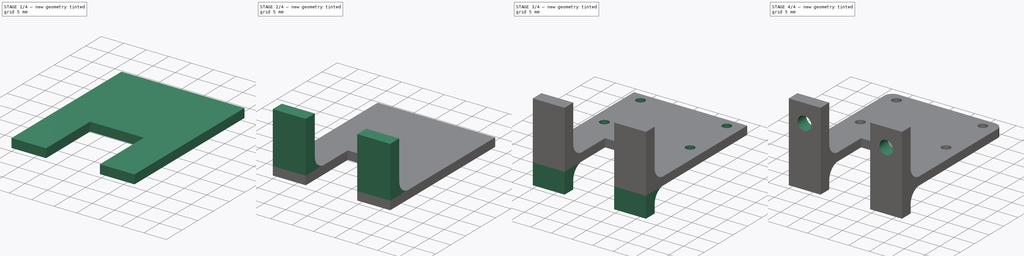
[diagram: build sequence overview — one tinted view per stage of 4, left to right]
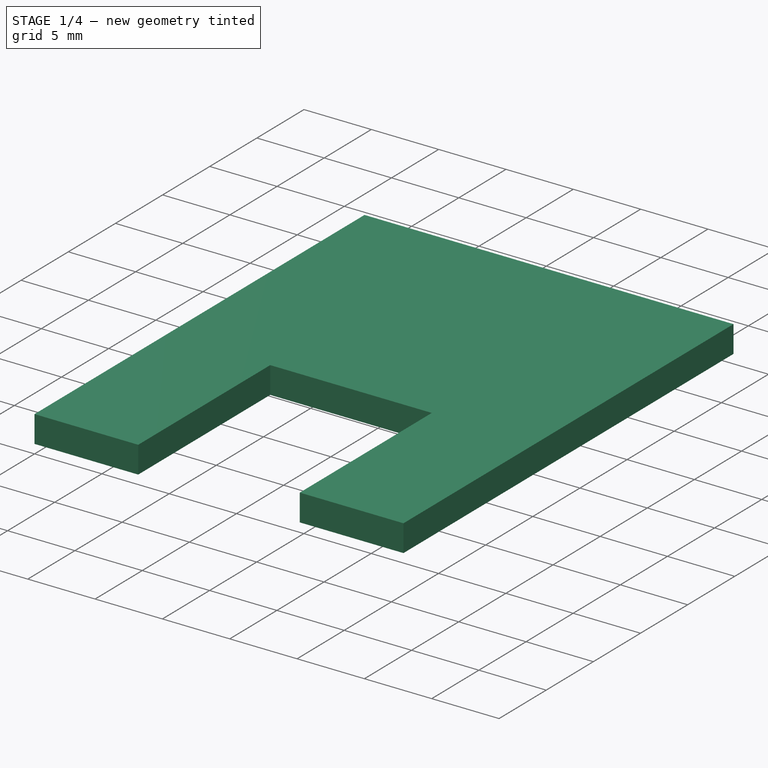
[diagram: stage 1 of 4 — iso view after this stage's code; geometry added in this stage tinted green]
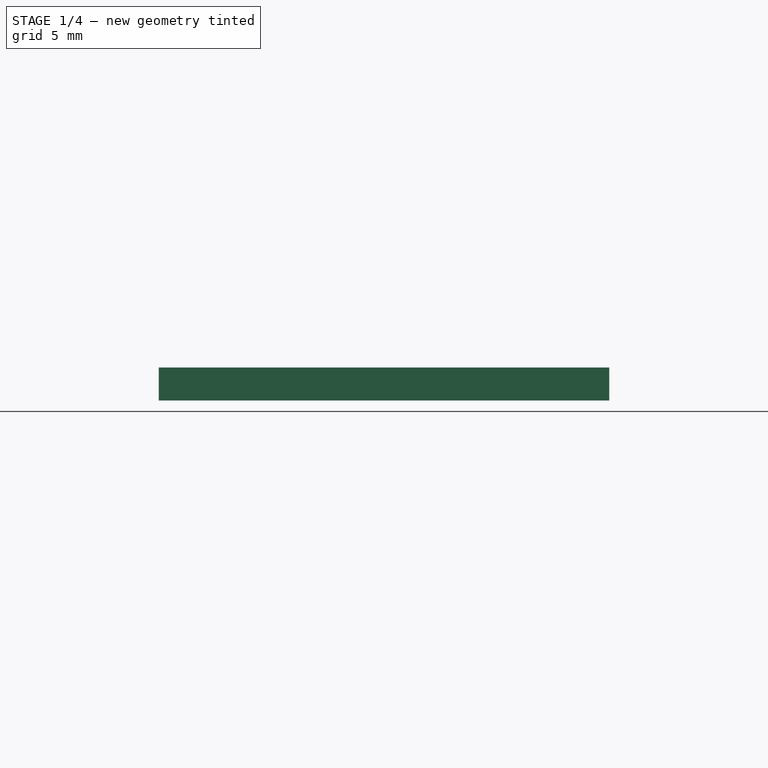
[diagram: stage 1 of 4 — front view after this stage's code; geometry added in this stage tinted green]
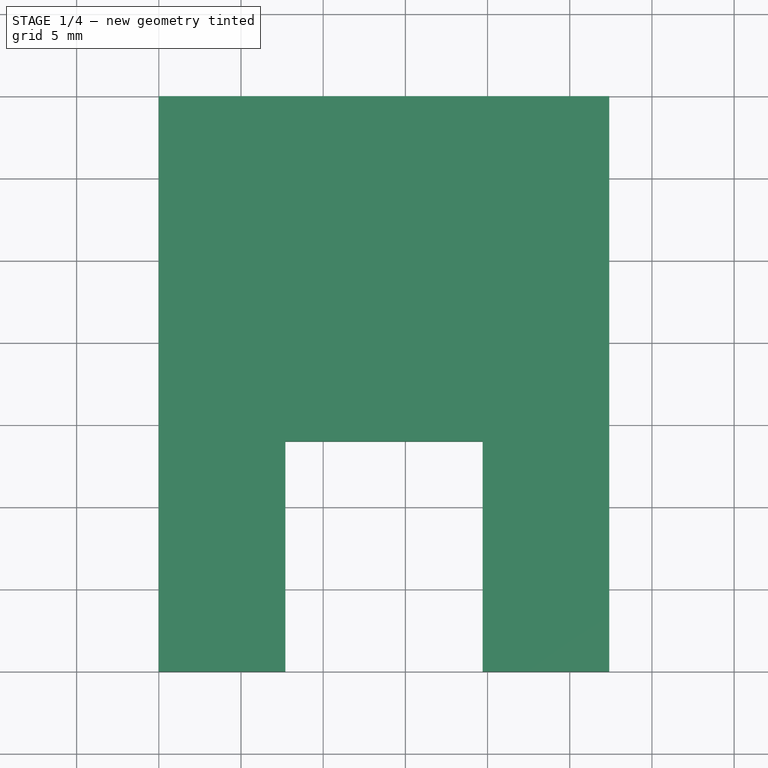
[diagram: stage 1 of 4 — top view after this stage's code; geometry added in this stage tinted green]
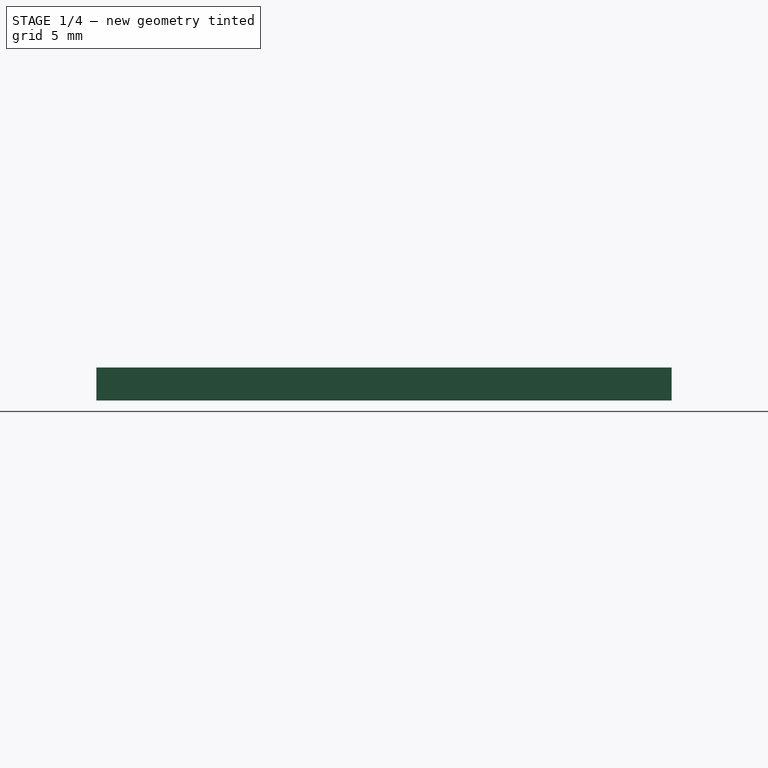
[diagram: stage 1 of 4 — right view after this stage's code; geometry added in this stage tinted green]
FCSTD DOCUMENT  (FreeCAD 0.20R29177 (Git))
Label: RPiCAM-FRAME
License: All rights reserved
LicenseURL: http://en.wikipedia.org/wiki/All_rights_reserved
objects: Sketcher::SketchObject×6, PartDesign::Pad×3, PartDesign::Pocket×3, PartDesign::Fillet×3, PartDesign::Body×1
note: 25 computed .brp shape members not serialized (recipe doc carries the construction recipe); baked Part::Feature solids carry a one-line shape summary decoded from their .brp

FEATURE [Sketcher::SketchObject] Sketch
  FullyConstrained = true
  MapMode = 5
  Support = -> [XY_Plane]
  sketch-geometry (4):
    g0: LineSegment StartX=0 StartY=0 StartZ=0 EndX=27.4 EndY=0 EndZ=0
    g1: LineSegment StartX=27.4 StartY=0 StartZ=0 EndX=27.4 EndY=35 EndZ=0
    g2: LineSegment StartX=27.4 StartY=35 StartZ=0 EndX=0 EndY=35 EndZ=0
    g3: LineSegment StartX=0 StartY=35 StartZ=0 EndX=0 EndY=0 EndZ=0
  constraints (11):
    c: Coincident(g0,g1)
    c: Coincident(g1,g2)
    c: Coincident(g2,g3)
    c: Coincident(g3,g0)
    c: Horizontal(g0)
    c: Horizontal(g2)
    c: Vertical(g1)
    c: Vertical(g3)
    c: Coincident(g0,g-1)
    c: DistanceX(g2,g2) = 27.4
    c: DistanceY(g1,g1) = 35
FEATURE [PartDesign::Pad] Pad
  Direction = (0,0,1)
  Length = 2
  Length2 = 10
  Profile = -> Sketch
  ReferenceAxis = -> Sketch [N_Axis]
  Type = 0
FEATURE [Sketcher::SketchObject] Sketch001
  FullyConstrained = true
  MapMode = 5
  Placement = pos=(0,0,2) rot=(0,0,1;0rad)
  Support = -> [Pad]
  sketch-geometry (4):
    g0: LineSegment StartX=7.7 StartY=0 StartZ=0 EndX=19.7 EndY=0 EndZ=0
    g1: LineSegment StartX=19.7 StartY=0 StartZ=0 EndX=19.7 EndY=14 EndZ=0
    g2: LineSegment StartX=19.7 StartY=14 StartZ=0 EndX=7.7 EndY=14 EndZ=0
    g3: LineSegment StartX=7.7 StartY=14 StartZ=0 EndX=7.7 EndY=0 EndZ=0
  constraints (12):
    c: Coincident(g0,g1)
    c: Coincident(g1,g2)
    c: Coincident(g2,g3)
    c: Coincident(g3,g0)
    c: Horizontal(g0)
    c: Horizontal(g2)
    c: Vertical(g1)
    c: Vertical(g3)
    c: PointOnObject(g0,g-1)
    c: DistanceX(g2,g2) = 12
    c: DistanceY(g3,g3) = 14
    c: DistanceX(g-1,g0) = 7.7
FEATURE [PartDesign::Pocket] Pocket
  BaseFeature = -> Pad
  Direction = (0,0,-1)
  Length = 2
  Length2 = 5
  Profile = -> Sketch001
  ReferenceAxis = -> Sketch001 [N_Axis]
  Type = 0
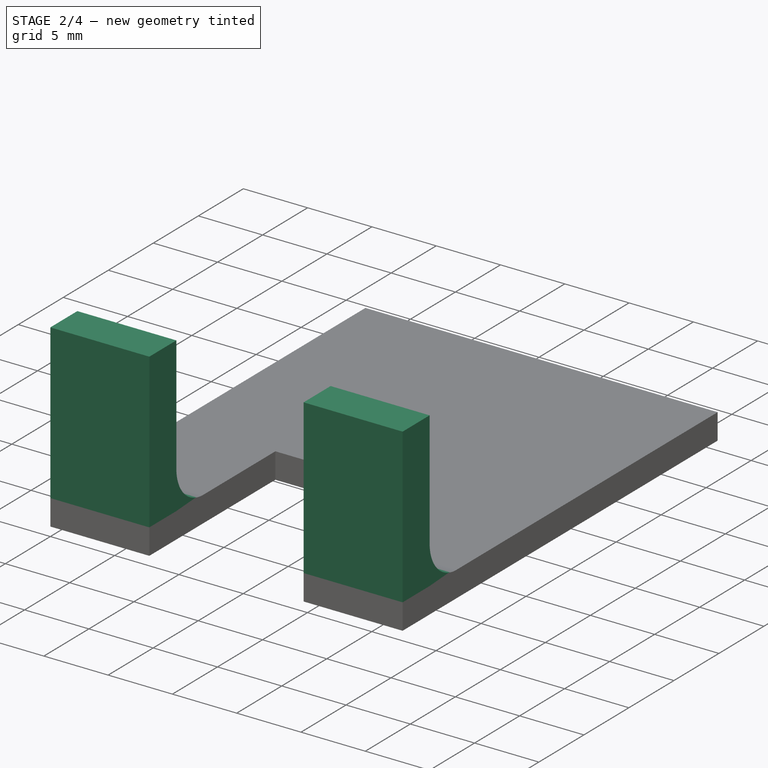
[diagram: stage 2 of 4 — iso view after this stage's code; geometry added in this stage tinted green]
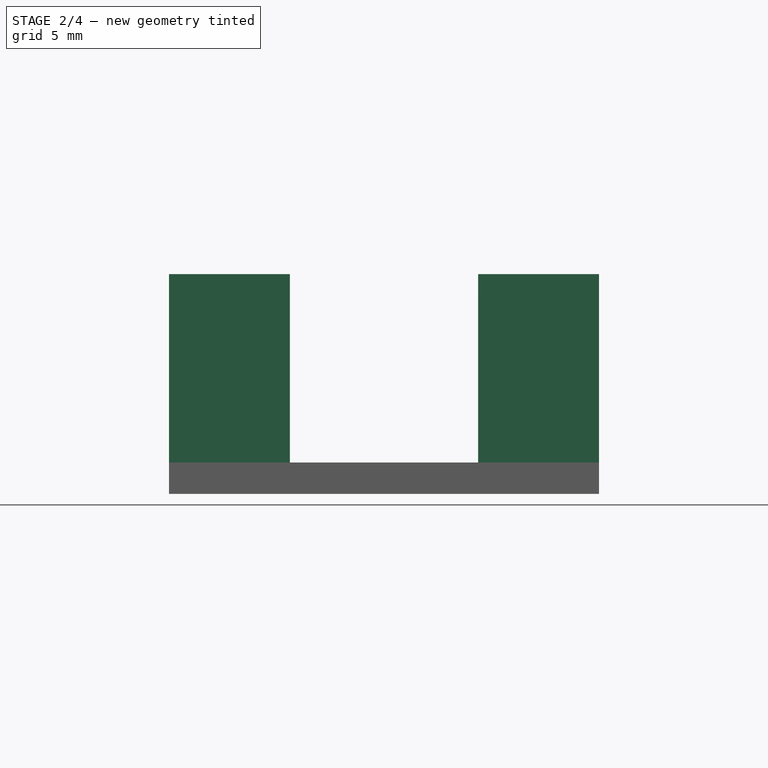
[diagram: stage 2 of 4 — front view after this stage's code; geometry added in this stage tinted green]
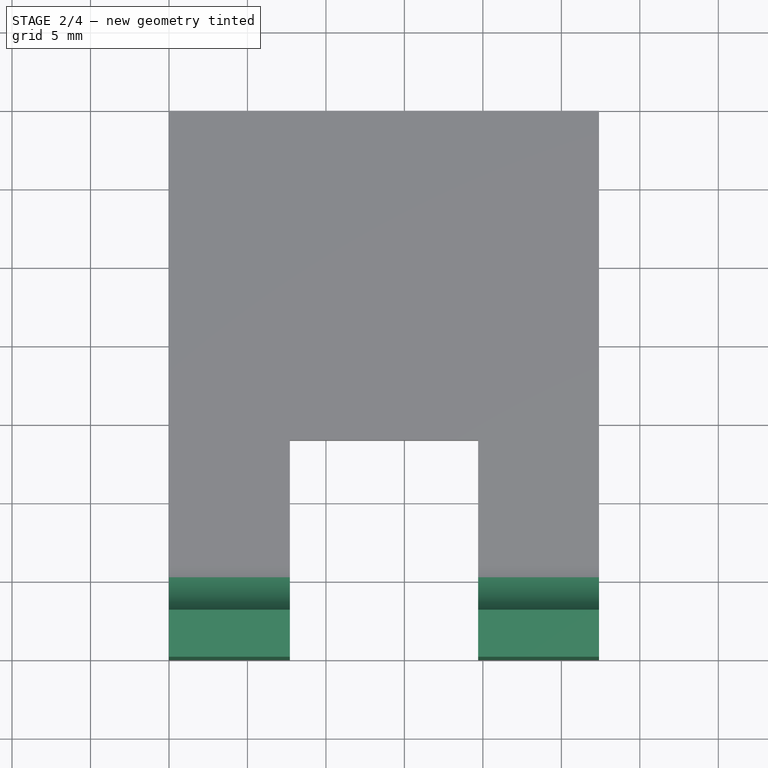
[diagram: stage 2 of 4 — top view after this stage's code; geometry added in this stage tinted green]
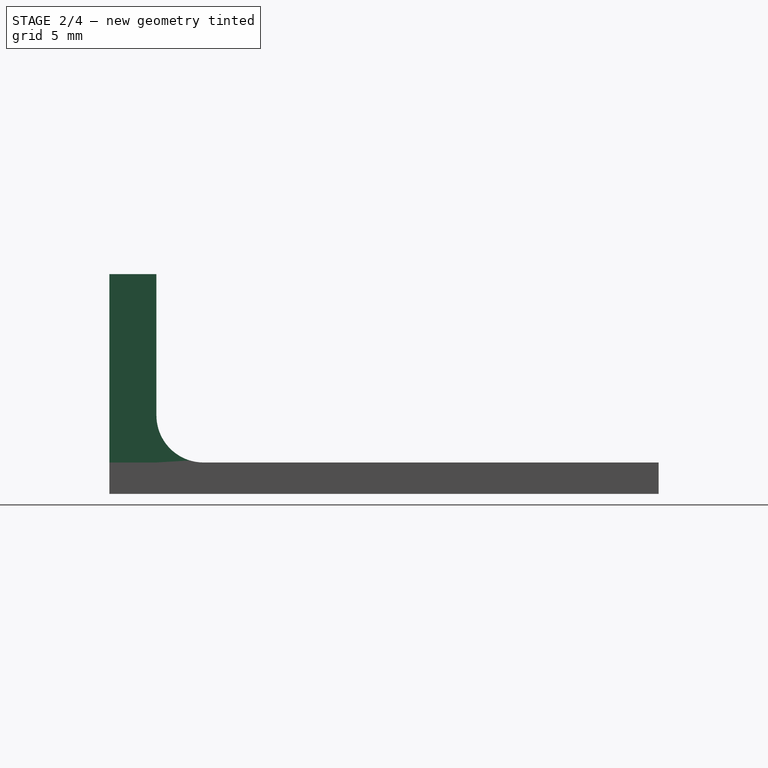
[diagram: stage 2 of 4 — right view after this stage's code; geometry added in this stage tinted green]
FEATURE [Sketcher::SketchObject] Sketch002
  FullyConstrained = true
  MapMode = 5
  Placement = pos=(0,0,2) rot=(0,0,1;0rad)
  Support = -> [Pocket]
  sketch-geometry (8):
    g0: LineSegment StartX=0 StartY=3 StartZ=0 EndX=7.7 EndY=3 EndZ=0
    g1: LineSegment StartX=7.7 StartY=3 StartZ=0 EndX=7.7 EndY=0 EndZ=0
    g2: LineSegment StartX=7.7 StartY=0 StartZ=0 EndX=0 EndY=0 EndZ=0
    g3: LineSegment StartX=0 StartY=0 StartZ=0 EndX=0 EndY=3 EndZ=0
    g4: LineSegment StartX=19.7 StartY=3 StartZ=0 EndX=27.4 EndY=3 EndZ=0
    g5: LineSegment StartX=27.4 StartY=3 StartZ=0 EndX=27.4 EndY=0 EndZ=0
    g6: LineSegment StartX=27.4 StartY=0 StartZ=0 EndX=19.7 EndY=0 EndZ=0
    g7: LineSegment StartX=19.7 StartY=0 StartZ=0 EndX=19.7 EndY=3 EndZ=0
  constraints (24):
    c: Coincident(g0,g1)
    c: Coincident(g1,g2)
    c: Coincident(g2,g3)
    c: Coincident(g3,g0)
    c: Horizontal(g0)
    c: Horizontal(g2)
    c: Vertical(g1)
    c: Vertical(g3)
    c: PointOnObject(g0,g-2)
    c: PointOnObject(g1,g-1)
    c: DistanceX(g0,g0) = 7.7
    c: DistanceY(g1,g1) = 3
    c: Coincident(g4,g5)
    c: Coincident(g5,g6)
    c: Coincident(g6,g7)
    c: Coincident(g7,g4)
    c: Horizontal(g4)
    c: Horizontal(g6)
    c: Vertical(g5)
    c: Vertical(g7)
    c: PointOnObject(g5,g-1)
    c: DistanceX(g4,g4) = 7.7
    c: DistanceY(g5,g5) = 3
    c: DistanceX(g1,g6) = 12
FEATURE [PartDesign::Pad] Pad001
  BaseFeature = -> Pocket
  Direction = (0,0,1)
  Length = 12
  Length2 = 10
  Profile = -> Sketch002
  ReferenceAxis = -> Sketch002 [N_Axis]
  Type = 0
FEATURE [PartDesign::Fillet] Fillet
  Base = -> Pad001 [Edge33,Edge32]
  BaseFeature = -> Pad001
  Radius = 3
  SupportTransform = false
  UseAllEdges = false
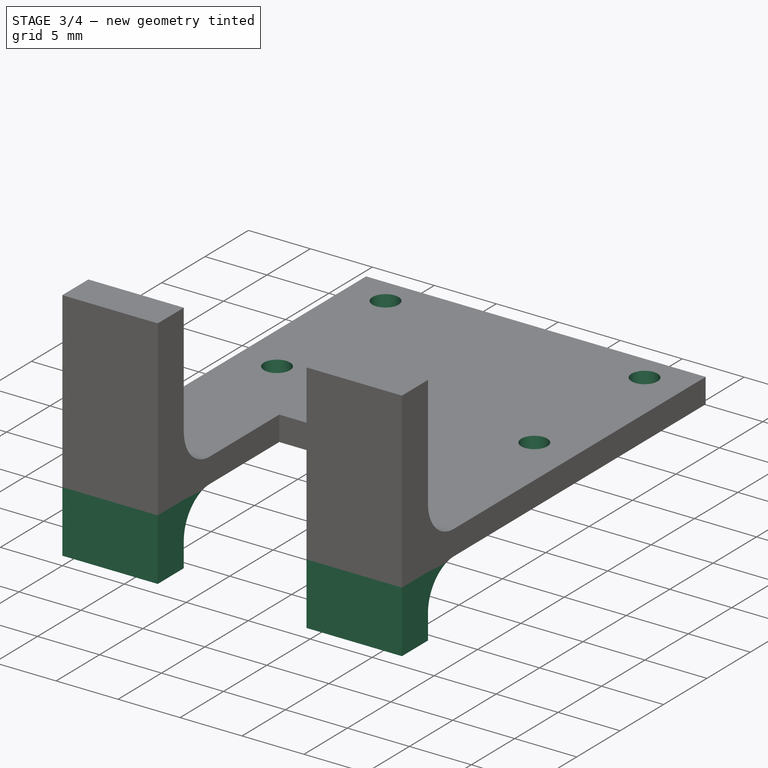
[diagram: stage 3 of 4 — iso view after this stage's code; geometry added in this stage tinted green]
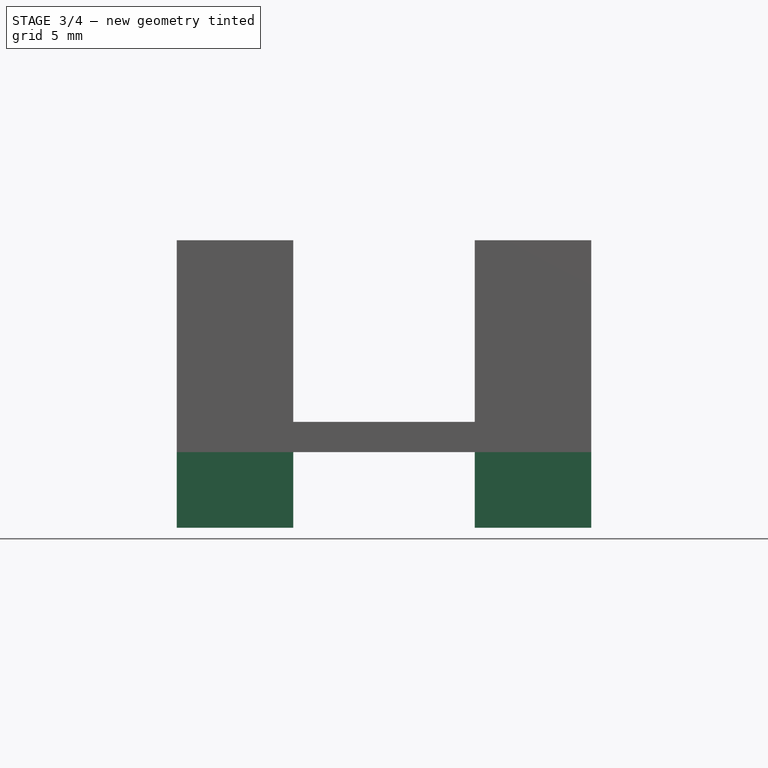
[diagram: stage 3 of 4 — front view after this stage's code; geometry added in this stage tinted green]
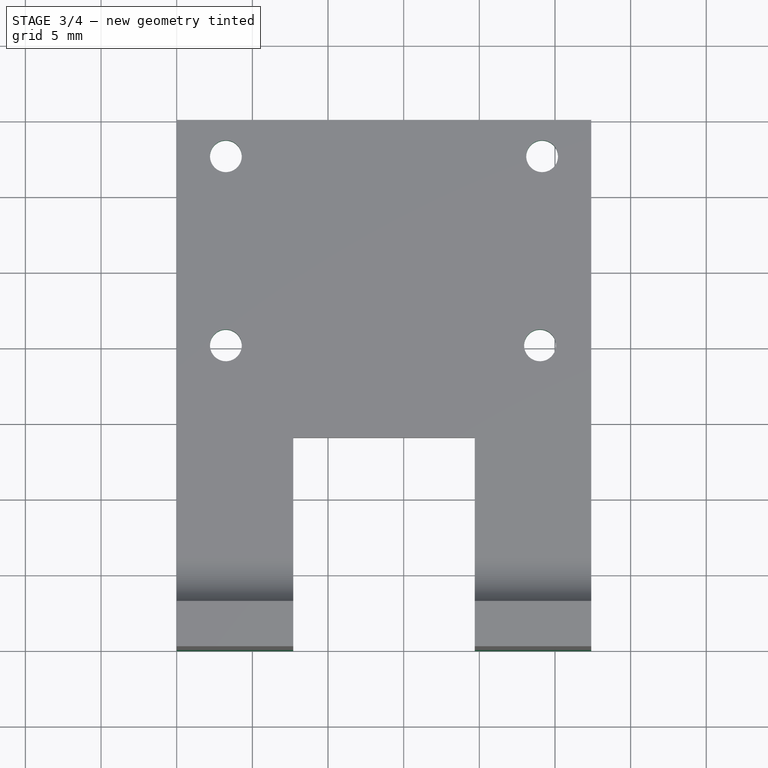
[diagram: stage 3 of 4 — top view after this stage's code; geometry added in this stage tinted green]
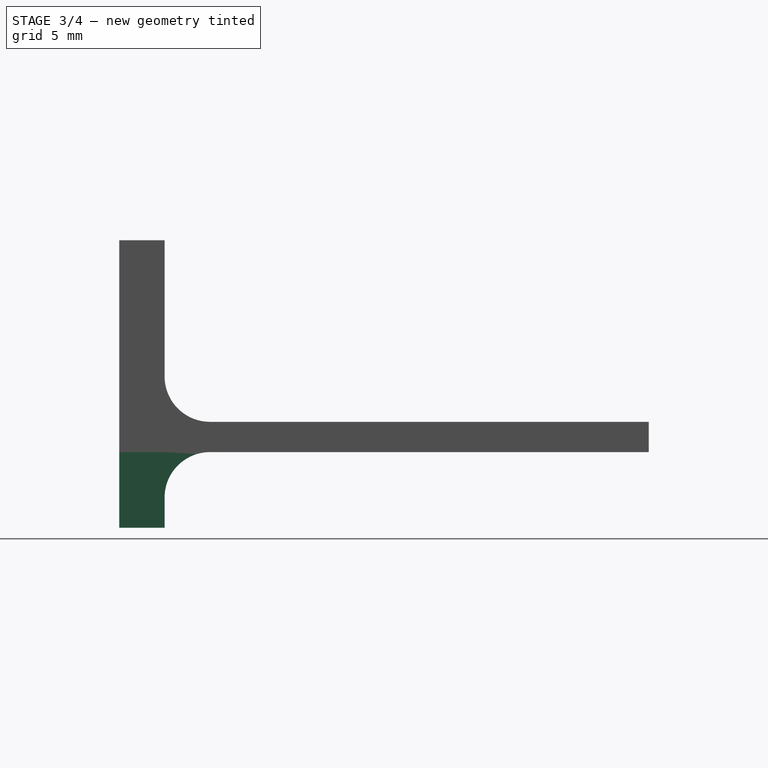
[diagram: stage 3 of 4 — right view after this stage's code; geometry added in this stage tinted green]
FEATURE [Sketcher::SketchObject] Sketch003
  FullyConstrained = true
  MapMode = 5
  Placement = pos=(0,0,0) rot=(1,0,0;3.14159rad)
  Support = -> [Fillet]
  sketch-geometry (8):
    g0: LineSegment StartX=0 StartY=0 StartZ=0 EndX=7.7 EndY=0 EndZ=0
    g1: LineSegment StartX=7.7 StartY=0 StartZ=0 EndX=7.7 EndY=-3 EndZ=0
    g2: LineSegment StartX=7.7 StartY=-3 StartZ=0 EndX=0 EndY=-3 EndZ=0
    g3: LineSegment StartX=0 StartY=-3 StartZ=0 EndX=0 EndY=0 EndZ=0
    g4: LineSegment StartX=19.7 StartY=0 StartZ=0 EndX=27.4 EndY=0 EndZ=0
    g5: LineSegment StartX=27.4 StartY=0 StartZ=0 EndX=27.4 EndY=-3 EndZ=0
    g6: LineSegment StartX=27.4 StartY=-3 StartZ=0 EndX=19.7 EndY=-3 EndZ=0
    g7: LineSegment StartX=19.7 StartY=-3 StartZ=0 EndX=19.7 EndY=0 EndZ=0
  constraints (23):
    c: Coincident(g0,g1)
    c: Coincident(g1,g2)
    c: Coincident(g2,g3)
    c: Coincident(g3,g0)
    c: Horizontal(g0)
    c: Horizontal(g2)
    c: Vertical(g1)
    c: Vertical(g3)
    c: Coincident(g0,g-1)
    c: DistanceY(g1,g1) = 3
    c: DistanceX(g0,g0) = 7.7
    c: Coincident(g4,g5)
    c: Coincident(g5,g6)
    c: Coincident(g6,g7)
    c: Coincident(g7,g4)
    c: Horizontal(g4)
    c: Horizontal(g6)
    c: Vertical(g5)
    c: Vertical(g7)
    c: PointOnObject(g4,g-1)
    c: DistanceY(g7,g7) = 3
    c: DistanceX(g6,g6) = 7.7
    c: DistanceX(g0,g4) = 12
FEATURE [PartDesign::Pad] Pad002
  BaseFeature = -> Fillet
  Direction = (0,0,-1)
  Length = 5
  Length2 = 10
  Profile = -> Sketch003
  ReferenceAxis = -> Sketch003 [N_Axis]
  Type = 0
FEATURE [PartDesign::Fillet] Fillet001
  Base = -> Pad002 [Edge25,Edge23]
  BaseFeature = -> Pad002
  Radius = 3
  SupportTransform = false
  UseAllEdges = false
FEATURE [Sketcher::SketchObject] Sketch004
  FullyConstrained = false
  MapMode = 5
  Placement = pos=(0,0,2) rot=(0,0,1;0rad)
  Support = -> [Fillet001]
  sketch-geometry (4):
    g0: Circle CenterX=3.25 CenterY=32.6 CenterZ=0 NormalX=0 NormalY=0 NormalZ=1 AngleXU=0 Radius=1.05
    g1: Circle CenterX=3.25 CenterY=20.1 CenterZ=0 NormalX=0 NormalY=0 NormalZ=1 AngleXU=0 Radius=1.05
    g2: Circle CenterX=24.15 CenterY=32.6 CenterZ=0 NormalX=0 NormalY=0 NormalZ=1 AngleXU=0 Radius=1.05
    g3: Circle CenterX=24.0098 CenterY=20.1 CenterZ=0 NormalX=0 NormalY=0 NormalZ=1 AngleXU=0 Radius=1.05
  constraints (11):
    c: Diameter(g0) = 2.1
    c: Diameter(g1) = 2.1
    c: Diameter(g2) = 2.1
    c: Diameter(g3) = 2.1
    c: DistanceX(g0,g2) = 20.9
    c: Vertical(g0,g1)
    c: Horizontal(g2,g0)
    c: Horizontal(g3,g1)
    c: DistanceY(g3,g2) = 12.5
    c: DistanceY(g-1,g0) = 32.6
    c: DistanceX(g-1,g1) = 3.25
FEATURE [PartDesign::Pocket] Pocket001
  BaseFeature = -> Fillet001
  Direction = (0,0,-1)
  Length = 2
  Length2 = 5
  Profile = -> Sketch004
  ReferenceAxis = -> Sketch004 [N_Axis]
  Type = 0
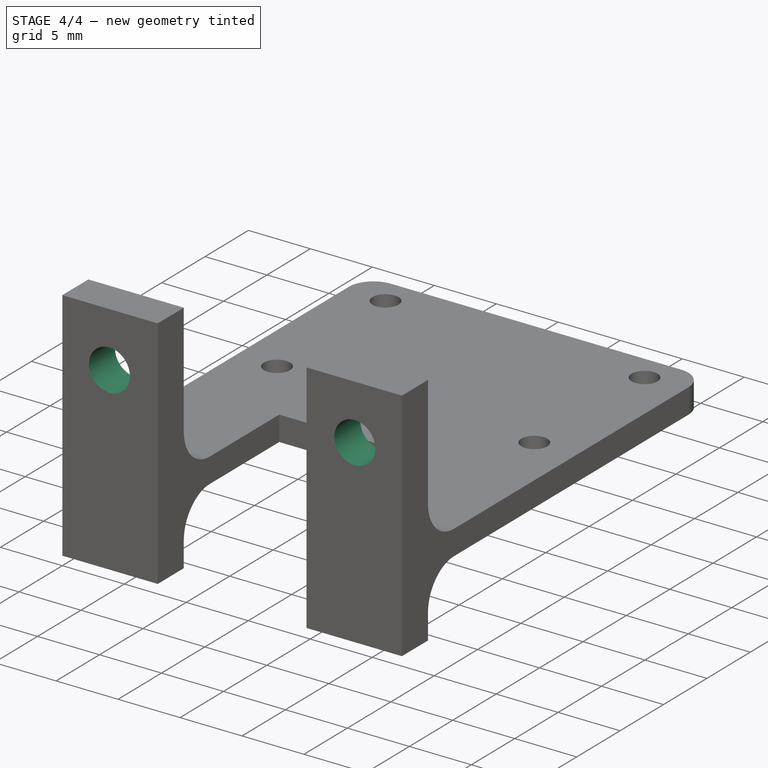
[diagram: stage 4 of 4 — iso view after this stage's code; geometry added in this stage tinted green]
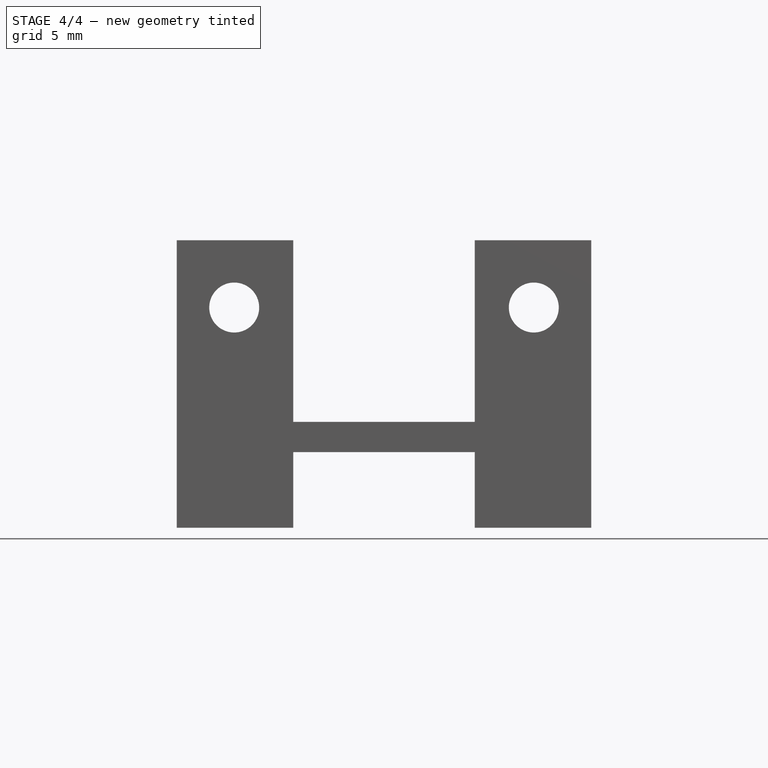
[diagram: stage 4 of 4 — front view after this stage's code; geometry added in this stage tinted green]
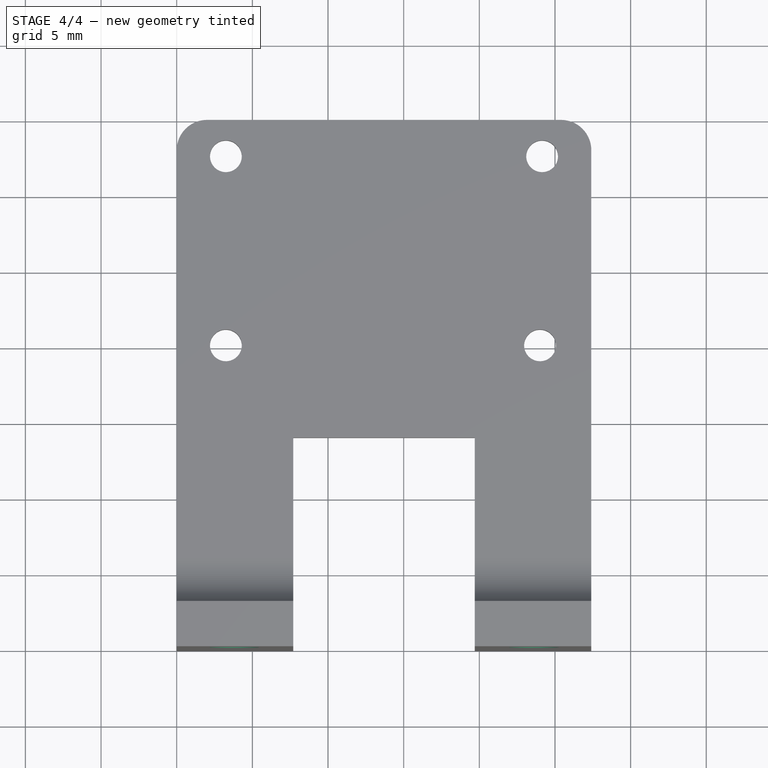
[diagram: stage 4 of 4 — top view after this stage's code; geometry added in this stage tinted green]
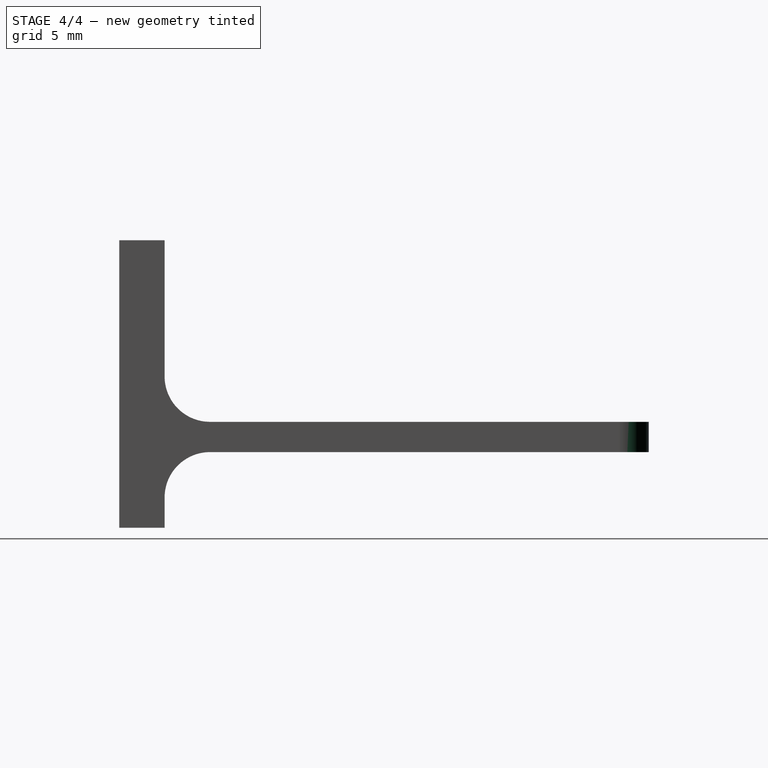
[diagram: stage 4 of 4 — right view after this stage's code; geometry added in this stage tinted green]
FEATURE [Sketcher::SketchObject] Sketch005
  FullyConstrained = false
  MapMode = 5
  Placement = pos=(0,3,0) rot=(0,0.707107,0.707107;3.14159rad)
  Support = -> [Pocket001]
  sketch-geometry (2):
    g0: Circle CenterX=-3.8 CenterY=9.55369 CenterZ=0 NormalX=0 NormalY=0 NormalZ=1 AngleXU=0 Radius=1.65
    g1: Circle CenterX=-23.6 CenterY=9.55369 CenterZ=0 NormalX=0 NormalY=0 NormalZ=1 AngleXU=0 Radius=1.65
  constraints (5):
    c: Diameter(g0) = 3.3
    c: Diameter(g1) = 3.3
    c: Horizontal(g1,g0)
    c: DistanceX(g1,g0) = 19.8
    c: DistanceX(g0,g-1) = 3.8
FEATURE [PartDesign::Pocket] Pocket002
  BaseFeature = -> Pocket001
  Direction = (0,-1,2e-16)
  Length = 3
  Length2 = 5
  Profile = -> Sketch005
  ReferenceAxis = -> Sketch005 [N_Axis]
  Type = 0
FEATURE [PartDesign::Fillet] Fillet002
  Base = -> Pocket002 [Edge52,Edge44]
  BaseFeature = -> Pocket002
  Radius = 2
  SupportTransform = false
  UseAllEdges = false
FEATURE [PartDesign::Body] Body
  Group = -> [Sketch,Pad,Sketch001,Pocket,Sketch002,Pad001,Fillet,Sketch003,Pad002,Fillet001,Sketch004,Pocket001,Sketch005,Pocket002,Fillet002]
  Origin = -> Origin
  Tip = -> Fillet002
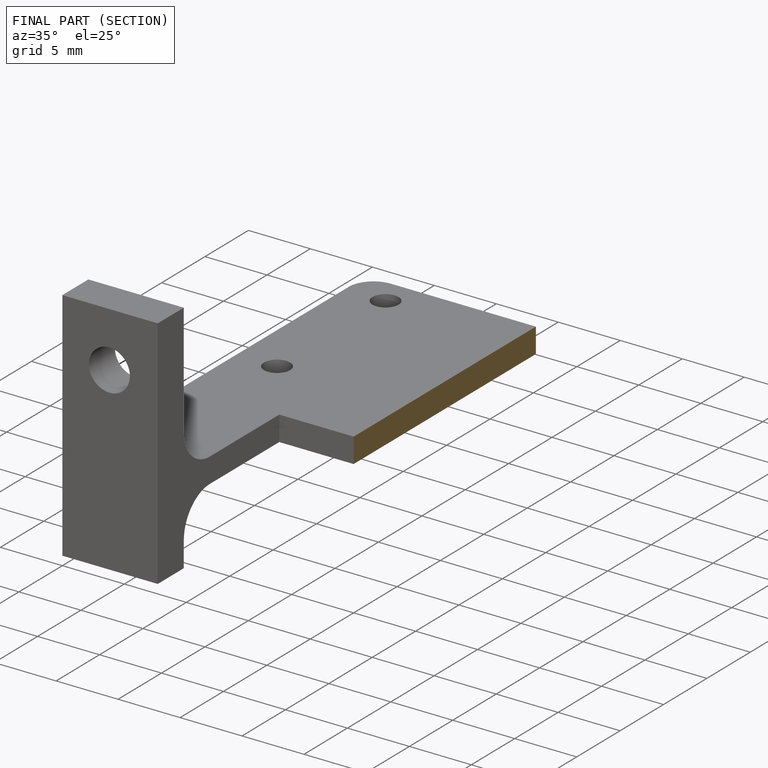
[diagram: finished part — half-section view (interior)]
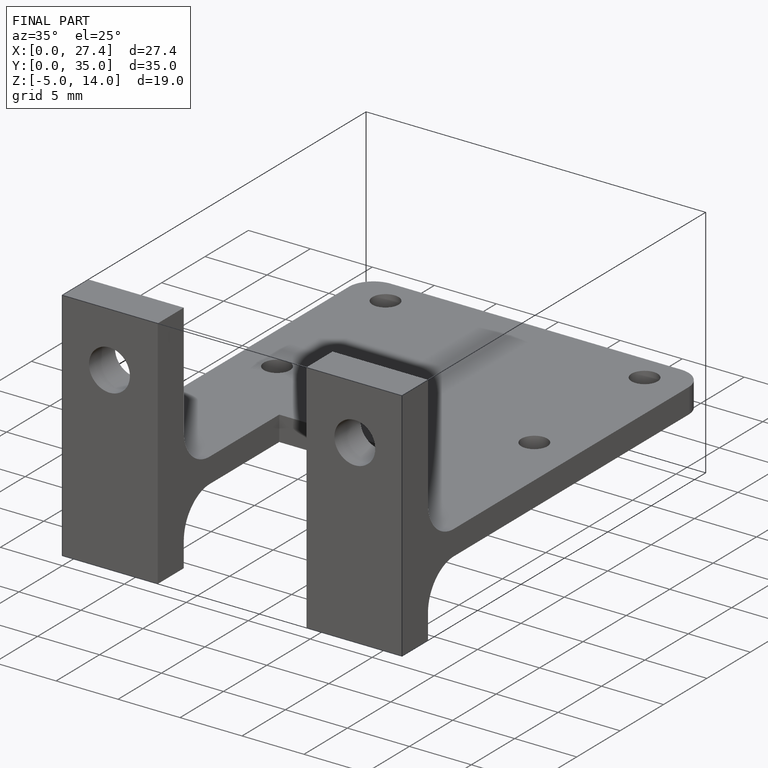
[diagram: finished part — iso view with bounding-box wireframe]
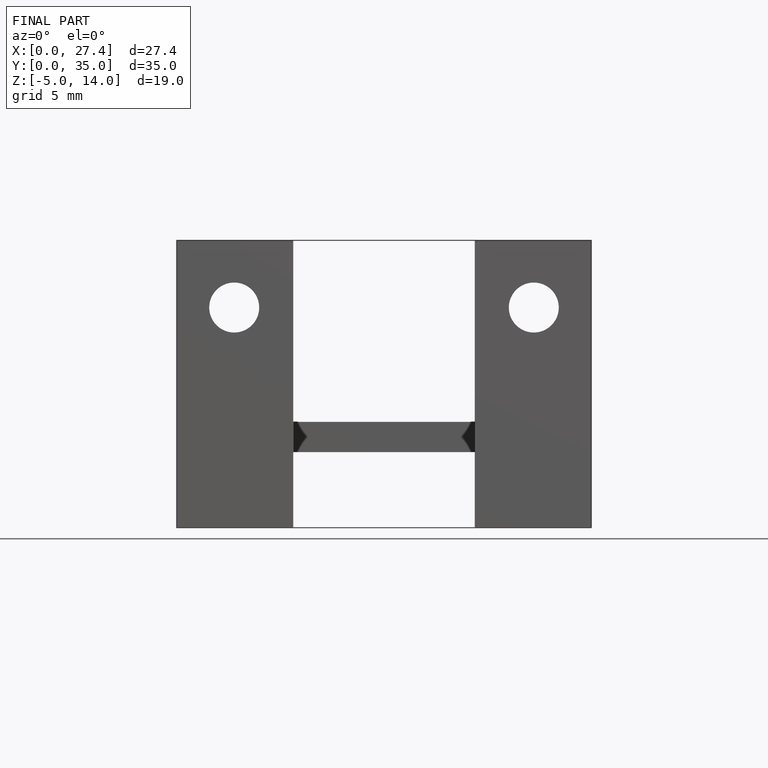
[diagram: finished part — front view with bounding-box wireframe]
